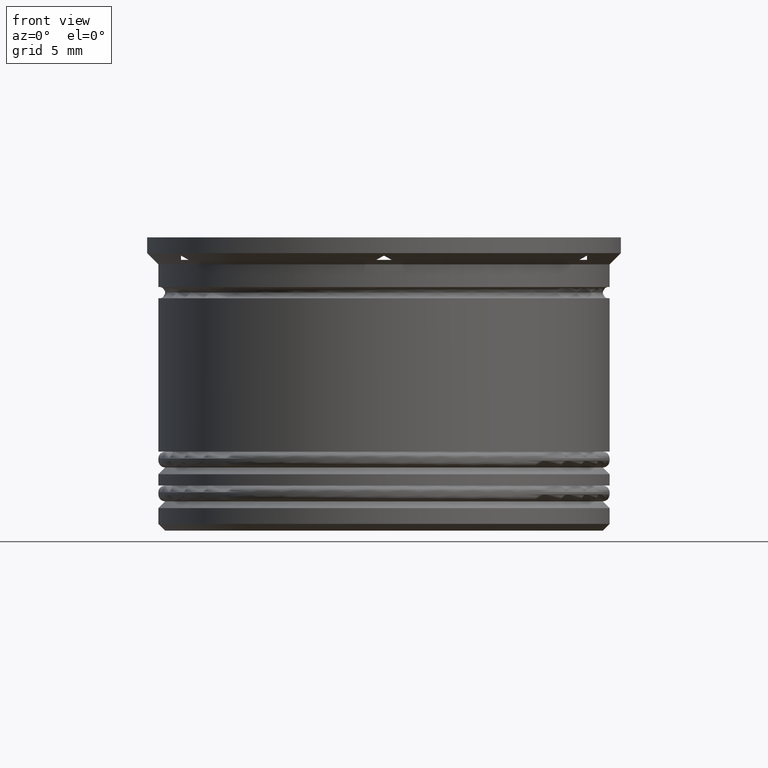
[diagram: clean part render]
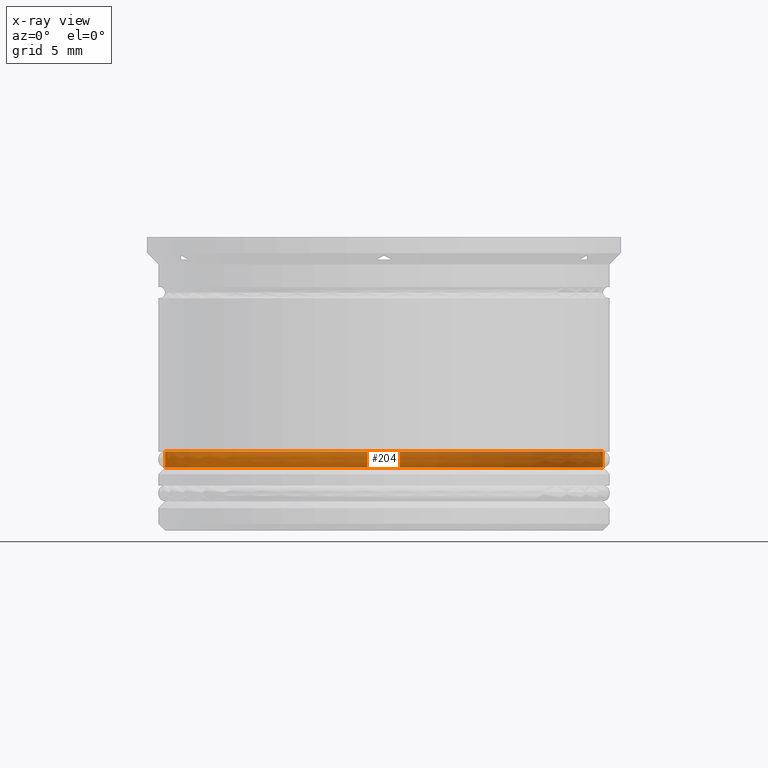
[diagram: x-ray — body ghosted, one internal face saturated and labeled with its STEP entity id]
A machine part, front view, then the same camera in x-ray: the body is ghosted and one INTERNAL B-rep face — a face not visible from any outside direction — is saturated and labeled: STEP entity #204.
In plain terms, the highlighted cylindrical surface (partial cylindrical patch) has radius 9.7 mm, axis along (-0, -0, 1).
Its self-contained STEP definition (entity closure, byte-faithful):
#64 = ORIENTED_EDGE ( 'NONE', *, *, #1249, .F. ) ;
#109 = EDGE_CURVE ( 'NONE', #668, #142, #401, .T. ) ;
#142 = VERTEX_POINT ( 'NONE', #963 ) ;
#155 = CARTESIAN_POINT ( 'NONE',  ( 9.700000000000001066, 0.000000000000000000, -10.20000000000000817 ) ) ;
#187 = AXIS2_PLACEMENT_3D ( 'NONE', #1115, #284, #622 ) ;
#204 = ADVANCED_FACE ( 'NONE', ( #1434 ), #2103, .T. ) ;
#261 = EDGE_LOOP ( 'NONE', ( #1649, #1819, #2084, #64 ) ) ;
#266 = AXIS2_PLACEMENT_3D ( 'NONE', #489, #2163, #1161 ) ;
#284 = DIRECTION ( 'NONE',  ( -0.000000000000000000, -0.000000000000000000, 1.000000000000000000 ) ) ;
#385 = CARTESIAN_POINT ( 'NONE',  ( 9.700000000000001066, 0.000000000000000000, 0.000000000000000000 ) ) ;
#401 = CIRCLE ( 'NONE', #266, 9.700000000000001066 ) ;
#414 = VERTEX_POINT ( 'NONE', #1087 ) ;
#489 = CARTESIAN_POINT ( 'NONE',  ( 0.000000000000000000, 0.000000000000000000, -10.20000000000000817 ) ) ;
#622 = DIRECTION ( 'NONE',  ( 1.000000000000000000, 0.000000000000000000, 0.000000000000000000 ) ) ;
#668 = VERTEX_POINT ( 'NONE', #155 ) ;
#716 = AXIS2_PLACEMENT_3D ( 'NONE', #952, #1939, #1107 ) ;
#830 = VECTOR ( 'NONE', #1974, 1000.000000000000000 ) ;
#952 = CARTESIAN_POINT ( 'NONE',  ( 0.000000000000000000, 0.000000000000000000, 0.000000000000000000 ) ) ;
#963 = CARTESIAN_POINT ( 'NONE',  ( -9.700000000000001066, 1.187907395172932594E-15, -10.20000000000000817 ) ) ;
#976 = CARTESIAN_POINT ( 'NONE',  ( -9.700000000000001066, 1.187907395172932594E-15, 0.000000000000000000 ) ) ;
#1008 = EDGE_CURVE ( 'NONE', #414, #1738, #1137, .T. ) ;
#1087 = CARTESIAN_POINT ( 'NONE',  ( 9.700000000000001066, 0.000000000000000000, -9.500000000000001776 ) ) ;
#1107 = DIRECTION ( 'NONE',  ( 1.000000000000000000, 0.000000000000000000, 0.000000000000000000 ) ) ;
#1115 = CARTESIAN_POINT ( 'NONE',  ( 0.000000000000000000, 0.000000000000000000, -9.500000000000001776 ) ) ;
#1137 = CIRCLE ( 'NONE', #187, 9.700000000000001066 ) ;
#1161 = DIRECTION ( 'NONE',  ( -1.000000000000000000, 0.000000000000000000, 0.000000000000000000 ) ) ;
#1249 = EDGE_CURVE ( 'NONE', #668, #414, #2087, .T. ) ;
#1434 = FACE_OUTER_BOUND ( 'NONE', #261, .T. ) ;
#1437 = CARTESIAN_POINT ( 'NONE',  ( -9.700000000000001066, 1.187907395172932594E-15, -9.500000000000001776 ) ) ;
#1482 = LINE ( 'NONE', #976, #830 ) ;
#1649 = ORIENTED_EDGE ( 'NONE', *, *, #109, .T. ) ;
#1727 = VECTOR ( 'NONE', #1909, 1000.000000000000000 ) ;
#1738 = VERTEX_POINT ( 'NONE', #1437 ) ;
#1819 = ORIENTED_EDGE ( 'NONE', *, *, #1882, .T. ) ;
#1882 = EDGE_CURVE ( 'NONE', #142, #1738, #1482, .T. ) ;
#1909 = DIRECTION ( 'NONE',  ( -0.000000000000000000, -0.000000000000000000, 1.000000000000000000 ) ) ;
#1939 = DIRECTION ( 'NONE',  ( -0.000000000000000000, -0.000000000000000000, 1.000000000000000000 ) ) ;
#1974 = DIRECTION ( 'NONE',  ( -0.000000000000000000, -0.000000000000000000, 1.000000000000000000 ) ) ;
#2084 = ORIENTED_EDGE ( 'NONE', *, *, #1008, .F. ) ;
#2087 = LINE ( 'NONE', #385, #1727 ) ;
#2103 = CYLINDRICAL_SURFACE ( 'NONE', #716, 9.700000000000001066 ) ;
#2163 = DIRECTION ( 'NONE',  ( -0.000000000000000000, -0.000000000000000000, 1.000000000000000000 ) ) ;